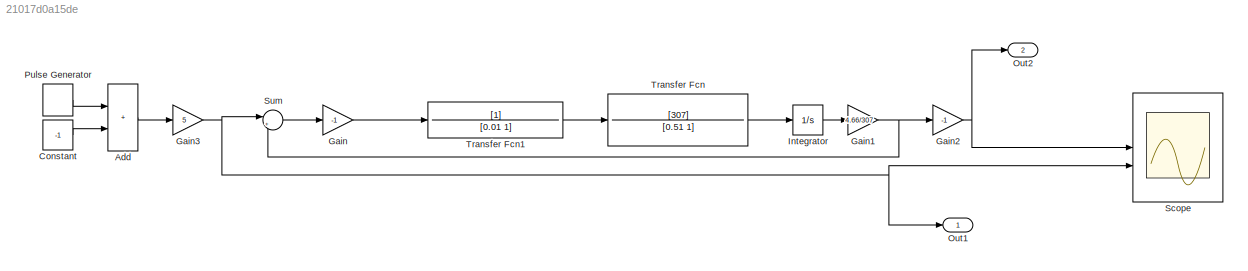
MODEL slx_21017d0a15de
KIND model
CONFIG AbsTol = auto
CONFIG EnableMultiTasking = off
CONFIG FixedStep = auto
CONFIG MaxStep = 1e-5
CONFIG MinStep = 1e-6
CONFIG RelTol = 1e-3
CONFIG SampleTimeConstraint = Unconstrained
CONFIG SolverName = VariableStepAuto
CONFIG StartTime = 0.0
CONFIG StopTime = 30
BLOCK [Sum] Add
  IconShape = rectangular
BLOCK [Constant] Constant
  Value = -1
BLOCK [Gain] Gain
  Gain = -1
BLOCK [Gain] Gain1
  Gain = 4.66/307
BLOCK [Gain] Gain2
  Gain = -1
BLOCK [Gain] Gain3
  Gain = 5
BLOCK [Integrator] Integrator
BLOCK [Outport] Out1
  SignalName = input
BLOCK [Outport] Out2
  Port = 2
  SignalName = output
BLOCK [DiscretePulseGenerator] Pulse Generator
  Amplitude = 2
  Period = 20
  PulseType = Time based
  PulseWidth = 50
BLOCK [Scope] Scope
  Floating = off
  NumInputPorts = 2
  ScopeSpecificationString = Simulink.scopes.TimeScopeBlockCfg('CurrentConfiguration', extmgr.ConfigurationSet(extmgr.Configuration('Core','General UI',true),extmgr.Configuration('Core','Source UI',true),extmgr.Configuration('Sources','WiredSimulink',true),extmgr.Configuration('Visuals','Time Domain',true,'SerializedDisplays',{struct('MinYLimReal','-10.75094','MaxYLimReal','10.7511','YLabelReal','','MinYLimMag','0.00000','Max...<+1364ch>
BLOCK [Sum] Sum
  Inputs = |++
BLOCK [TransferFcn] Transfer Fcn
  Denominator = [0.51 1]
  Numerator = [307]
BLOCK [TransferFcn] Transfer Fcn1
  Denominator = [0.01 1]
LINE Add:1 -> Gain3:1
LINE Constant:1 -> Add:2
NET Gain1:1 -> Gain2:1, Sum:2
NET Gain2:1 -> Out2:1, Scope:1
NET Gain3:1 -> Out1:1, Scope:2, Sum:1
LINE Gain:1 -> Transfer Fcn1:1
LINE Integrator:1 -> Gain1:1
LINE Pulse Generator:1 -> Add:1
LINE Sum:1 -> Gain:1
LINE Transfer Fcn1:1 -> Transfer Fcn:1
LINE Transfer Fcn:1 -> Integrator:1
note: NET lines group one-source signal fan-out (src -> all destinations, sorted); 1:1 wires keep LINE
